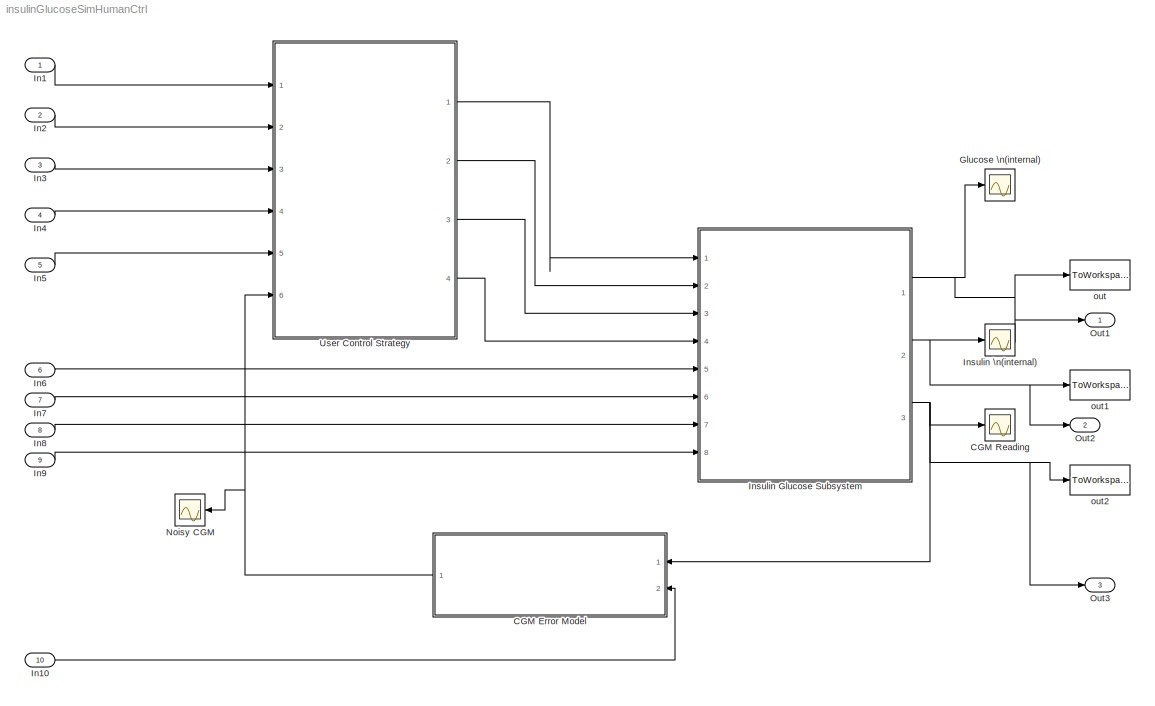
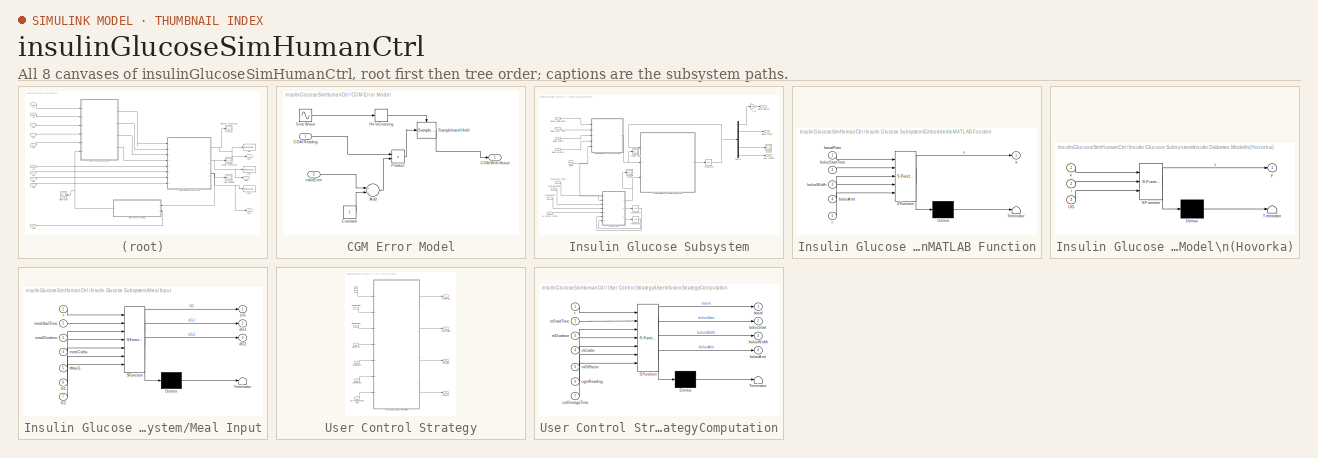
[diagram: thumbnail index - all 8 canvases of the model, root first then tree order]
MODEL insulinGlucoseSimHumanCtrl
KIND model
BLOCK [SubSystem] CGM Error Model
  FunctionWithSeparateData = off
  MaskHideContents = off
  MinAlgLoopOccurrences = off
  Opaque = off
  Ports = [2, 1]
  PropExecContextOutsideSubsystem = off
  RTWSystemCode = Auto
  RequestExecContextInheritance = off
  SID = 101
BLOCK [Sum] CGM Error Model/Add
  InputSameDT = off
  OutDataTypeMode = Inherit via internal rule
  OutDataTypeStr = Inherit: Inherit via internal rule
  Ports = [2, 1]
  SID = 108
  SaturateOnIntegerOverflow = off
BLOCK [Inport] CGM Error Model/CGM Reading
  IconDisplay = Port number
  SID = 102
BLOCK [Outport] CGM Error Model/CGM With Noise
  IconDisplay = Port number
  SID = 103
BLOCK [Constant] CGM Error Model/Constant
  SID = 106
BLOCK [HitCross] CGM Error Model/Hit \nCrossing
  HitCrossingDirection = rising
  Ports = [1, 1]
  SID = 143
BLOCK [Product] CGM Error Model/Product
  InputSameDT = off
  OutDataTypeMode = Inherit via internal rule
  OutDataTypeStr = Inherit: Inherit via internal rule
  Ports = [2, 1]
  SID = 109
  SaturateOnIntegerOverflow = off
BLOCK [Reference] CGM Error Model/Sample\nand Hold  REF=dspsigops/Sample\nand Hold
  FunctionWithSeparateData = off
  Ports = [1, 1, 0, 1]
  RTWMemSecDataConstants = Inherit from model
  RTWMemSecDataInternal = Inherit from model
  RTWMemSecDataParameters = Inherit from model
  RTWMemSecFuncExecute = Inherit from model
  RTWMemSecFuncInitTerm = Inherit from model
  SID = 139
  ShowPortLabels = FromPortIcon
  SourceBlock = dspsigops/Sample\nand Hold
  SourceType = Sample and Hold
  SystemSampleTime = -1
  initCond = 4.0
  latchinput = off
  trig = Rising edge
BLOCK [Sin] CGM Error Model/Sine Wave
  Amplitude = 1
  Bias = 0
  Frequency = 2 * 3.1415/20
  Offset = 0
  Phase = 0
  Ports = [0, 1]
  SID = 142
  SampleTime = 0
  Samples = 10
BLOCK [Inport] CGM Error Model/calibError
  IconDisplay = Port number
  Port = 2
  SID = 162
BLOCK [Scope] CGM Reading
  DataFormat = StructureWithTime
  Floating = off
  NumInputPorts = 1
  Ports = [1]
  SID = 79
  SampleTime = 0
  SaveName = ScopeData3
  YMax = 12
  YMin = 0
BLOCK [Scope] Glucose \n(internal)
  DataFormat = StructureWithTime
  Floating = off
  NumInputPorts = 1
  Ports = [1]
  SID = 80
  SampleTime = 0
  SaveName = ScopeData5
  YMax = 12
  YMin = 0
  ZoomMode = yonly
BLOCK [Inport] In1
  IconDisplay = Port number
  SID = 167
BLOCK [Inport] In10
  IconDisplay = Port number
  Port = 10
  SID = 176
BLOCK [Inport] In2
  IconDisplay = Port number
  Port = 2
  SID = 168
BLOCK [Inport] In3
  IconDisplay = Port number
  Port = 3
  SID = 169
BLOCK [Inport] In4
  IconDisplay = Port number
  Port = 4
  SID = 170
BLOCK [Inport] In5
  IconDisplay = Port number
  Port = 5
  SID = 171
BLOCK [Inport] In6
  IconDisplay = Port number
  Port = 6
  SID = 172
BLOCK [Inport] In7
  IconDisplay = Port number
  Port = 7
  SID = 173
BLOCK [Inport] In8
  IconDisplay = Port number
  Port = 8
  SID = 174
BLOCK [Inport] In9
  IconDisplay = Port number
  Port = 9
  SID = 175
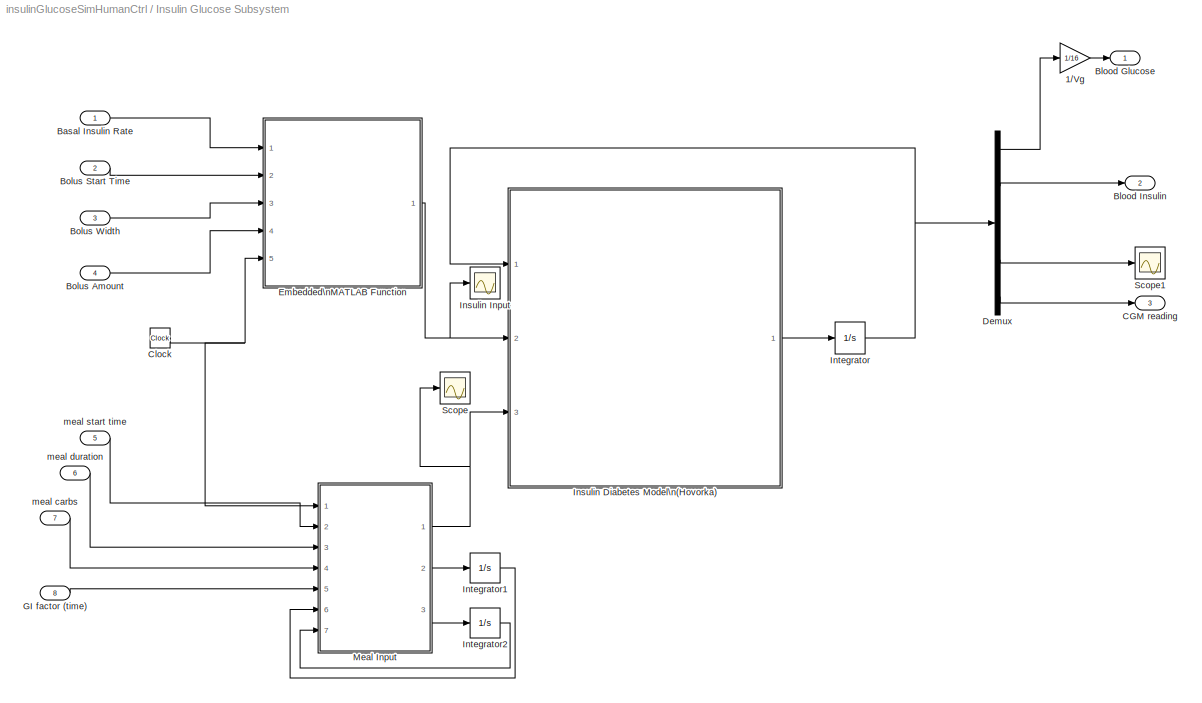
BLOCK [SubSystem] Insulin Glucose Subsystem
  FunctionWithSeparateData = off
  MaskHideContents = off
  MinAlgLoopOccurrences = off
  Opaque = off
  Ports = [8, 3]
  PropExecContextOutsideSubsystem = off
  RTWSystemCode = Auto
  RequestExecContextInheritance = off
  SID = 33
BLOCK [Gain] Insulin Glucose Subsystem/1//Vg
  Gain = 1/16
  OutDataTypeMode = Inherit via internal rule
  OutDataTypeStr = Inherit: Inherit via internal rule
  ParamDataTypeStr = Inherit: Inherit via internal rule
  ParameterDataTypeMode = Inherit via internal rule
  SID = 36
  SaturateOnIntegerOverflow = off
BLOCK [Inport] Insulin Glucose Subsystem/Basal Insulin Rate
  IconDisplay = Port number
  SID = 55
BLOCK [Outport] Insulin Glucose Subsystem/Blood Glucose
  IconDisplay = Port number
  SID = 65
BLOCK [Outport] Insulin Glucose Subsystem/Blood Insulin
  IconDisplay = Port number
  Port = 2
  SID = 66
BLOCK [Inport] Insulin Glucose Subsystem/Bolus Amount
  IconDisplay = Port number
  Port = 4
  SID = 58
BLOCK [Inport] Insulin Glucose Subsystem/Bolus Start Time
  IconDisplay = Port number
  Port = 2
  SID = 56
BLOCK [Inport] Insulin Glucose Subsystem/Bolus Width
  IconDisplay = Port number
  Port = 3
  SID = 57
BLOCK [Outport] Insulin Glucose Subsystem/CGM reading
  IconDisplay = Port number
  Port = 3
  SID = 67
BLOCK [Clock] Insulin Glucose Subsystem/Clock
  Decimation = 1000
  SID = 38
BLOCK [Demux] Insulin Glucose Subsystem/Demux
  DisplayOption = bar
  Outputs = 9
  Ports = [1, 9]
  SID = 39
BLOCK [SubSystem] Insulin Glucose Subsystem/Embedded\nMATLAB Function
  FunctionWithSeparateData = off
  MaskDescription = Embedded MATLAB block
  MaskDisplay = disp('insulinPump');
  MaskHideContents = off
  MaskIconFrame = on
  MaskIconOpaque = off
  MaskIconRotate = none
  MaskIconUnits = autoscale
  MaskPortRotate = default
  MaskSelfModifiable = on
  MaskType = Stateflow
  MinAlgLoopOccurrences = off
  Opaque = off
  PermitHierarchicalResolution = ExplicitOnly
  Ports = [5, 1]
  PropExecContextOutsideSubsystem = off
  RTWSystemCode = Auto
  RequestExecContextInheritance = off
  SID = 40
  TreatAsAtomicUnit = on
BLOCK [Demux] Insulin Glucose Subsystem/Embedded\nMATLAB Function/ Demux 
  Outputs = 1
  Ports = [1, 1]
  SID = 40
BLOCK [S-Function] Insulin Glucose Subsystem/Embedded\nMATLAB Function/ SFunction 
  EnableBusSupport = on
  FunctionName = sf_sfun
  PortCounts = [5 2]
  Ports = [5, 2]
  SID = 40
  Tag = Stateflow S-Function insulinGlucoseSimHumanCtrl 3
BLOCK [Terminator] Insulin Glucose Subsystem/Embedded\nMATLAB Function/ Terminator 
  SID = 40
BLOCK [Inport] Insulin Glucose Subsystem/Embedded\nMATLAB Function/basalRate
  IconDisplay = Port number
  SID = 40
BLOCK [Inport] Insulin Glucose Subsystem/Embedded\nMATLAB Function/bolusAmt
  IconDisplay = Port number
  Port = 4
  SID = 40
BLOCK [Inport] Insulin Glucose Subsystem/Embedded\nMATLAB Function/bolusStartTime
  IconDisplay = Port number
  Port = 2
  SID = 40
BLOCK [Inport] Insulin Glucose Subsystem/Embedded\nMATLAB Function/bolusWidth
  IconDisplay = Port number
  Port = 3
  SID = 40
BLOCK [Inport] Insulin Glucose Subsystem/Embedded\nMATLAB Function/t
  IconDisplay = Port number
  Port = 5
  SID = 40
BLOCK [Outport] Insulin Glucose Subsystem/Embedded\nMATLAB Function/y
  IconDisplay = Port number
  SID = 40
BLOCK [Inport] Insulin Glucose Subsystem/GI factor (time)
  IconDisplay = Port number
  Port = 8
  SID = 64
BLOCK [SubSystem] Insulin Glucose Subsystem/Insulin Diabetes Model\n(Hovorka)
  FunctionWithSeparateData = off
  MaskDescription = Embedded MATLAB block
  MaskDisplay = disp('insulinGlucoseSimulinkBlkFun');
  MaskHideContents = off
  MaskIconFrame = on
  MaskIconOpaque = off
  MaskIconRotate = none
  MaskIconUnits = autoscale
  MaskPortRotate = default
  MaskSelfModifiable = on
  MaskType = Stateflow
  MinAlgLoopOccurrences = off
  Opaque = off
  PermitHierarchicalResolution = ExplicitOnly
  Ports = [3, 1]
  PropExecContextOutsideSubsystem = off
  RTWSystemCode = Auto
  RequestExecContextInheritance = off
  SID = 43
  TreatAsAtomicUnit = on
BLOCK [Demux] Insulin Glucose Subsystem/Insulin Diabetes Model\n(Hovorka)/ Demux 
  Outputs = 1
  Ports = [1, 1]
  SID = 43
BLOCK [S-Function] Insulin Glucose Subsystem/Insulin Diabetes Model\n(Hovorka)/ SFunction 
  EnableBusSupport = on
  FunctionName = sf_sfun
  PortCounts = [3 2]
  Ports = [3, 2]
  SID = 43
  Tag = Stateflow S-Function insulinGlucoseSimHumanCtrl 2
BLOCK [Terminator] Insulin Glucose Subsystem/Insulin Diabetes Model\n(Hovorka)/ Terminator 
  SID = 43
BLOCK [Inport] Insulin Glucose Subsystem/Insulin Diabetes Model\n(Hovorka)/UG
  IconDisplay = Port number
  Port = 3
  SID = 43
BLOCK [Inport] Insulin Glucose Subsystem/Insulin Diabetes Model\n(Hovorka)/i
  IconDisplay = Port number
  Port = 2
  SID = 43
BLOCK [Inport] Insulin Glucose Subsystem/Insulin Diabetes Model\n(Hovorka)/x
  IconDisplay = Port number
  SID = 43
BLOCK [Outport] Insulin Glucose Subsystem/Insulin Diabetes Model\n(Hovorka)/y
  IconDisplay = Port number
  SID = 43
BLOCK [Scope] Insulin Glucose Subsystem/Insulin Input
  DataFormat = StructureWithTime
  Floating = off
  NumInputPorts = 1
  Ports = [1]
  SID = 44
  SampleTime = 0
  SaveName = ScopeData4
  YMax = 2.5
  YMin = 0
BLOCK [Integrator] Insulin Glucose Subsystem/Integrator
  InitialCondition = [64.0; 40.0; 0.03 ; 0.03; 0.045; 0.04; 4.2; 4; 4]
  Ports = [1, 1]
  SID = 45
BLOCK [Integrator] Insulin Glucose Subsystem/Integrator1
  Ports = [1, 1]
  SID = 62
BLOCK [Integrator] Insulin Glucose Subsystem/Integrator2
  Ports = [1, 1]
  SID = 63
BLOCK [SubSystem] Insulin Glucose Subsystem/Meal Input
  FunctionWithSeparateData = off
  MaskDescription = Embedded MATLAB block
  MaskDisplay = disp('mealInput');
  MaskHideContents = off
  MaskIconFrame = on
  MaskIconOpaque = off
  MaskIconRotate = none
  MaskIconUnits = autoscale
  MaskPortRotate = default
  MaskSelfModifiable = on
  MaskType = Stateflow
  MinAlgLoopOccurrences = off
  Opaque = off
  PermitHierarchicalResolution = ExplicitOnly
  Ports = [7, 3]
  PropExecContextOutsideSubsystem = off
  RTWSystemCode = Auto
  RequestExecContextInheritance = off
  SID = 49
  TreatAsAtomicUnit = on
BLOCK [Demux] Insulin Glucose Subsystem/Meal Input/ Demux 
  Outputs = 1
  Ports = [1, 1]
  SID = 49
BLOCK [S-Function] Insulin Glucose Subsystem/Meal Input/ SFunction 
  EnableBusSupport = on
  FunctionName = sf_sfun
  PortCounts = [7 4]
  Ports = [7, 4]
  SID = 49
  Tag = Stateflow S-Function insulinGlucoseSimHumanCtrl 1
BLOCK [Terminator] Insulin Glucose Subsystem/Meal Input/ Terminator 
  SID = 49
BLOCK [Inport] Insulin Glucose Subsystem/Meal Input/G1
  IconDisplay = Port number
  Port = 6
  SID = 49
BLOCK [Inport] Insulin Glucose Subsystem/Meal Input/G2
  IconDisplay = Port number
  Port = 7
  SID = 49
BLOCK [Outport] Insulin Glucose Subsystem/Meal Input/UG
  IconDisplay = Port number
  SID = 49
BLOCK [Outport] Insulin Glucose Subsystem/Meal Input/dG1
  IconDisplay = Port number
  Port = 2
  SID = 49
BLOCK [Outport] Insulin Glucose Subsystem/Meal Input/dG2
  IconDisplay = Port number
  Port = 3
  SID = 49
BLOCK [Inport] Insulin Glucose Subsystem/Meal Input/mealCarbs
  IconDisplay = Port number
  Port = 4
  SID = 49
BLOCK [Inport] Insulin Glucose Subsystem/Meal Input/mealDuration
  IconDisplay = Port number
  Port = 3
  SID = 49
BLOCK [Inport] Insulin Glucose Subsystem/Meal Input/mealStartTime
  IconDisplay = Port number
  Port = 2
  SID = 49
BLOCK [Inport] Insulin Glucose Subsystem/Meal Input/t
  IconDisplay = Port number
  SID = 49
BLOCK [Inport] Insulin Glucose Subsystem/Meal Input/tMaxG
  IconDisplay = Port number
  Port = 5
  SID = 49
BLOCK [Scope] Insulin Glucose Subsystem/Scope
  DataFormat = StructureWithTime
  Floating = off
  NumInputPorts = 1
  Ports = [1]
  SID = 82
  SampleTime = 0
BLOCK [Scope] Insulin Glucose Subsystem/Scope1
  DataFormat = StructureWithTime
  Floating = off
  NumInputPorts = 1
  Ports = [1]
  SID = 157
  SampleTime = 0
  SaveName = ScopeData7
BLOCK [Inport] Insulin Glucose Subsystem/meal carbs
  IconDisplay = Port number
  Port = 7
  SID = 61
BLOCK [Inport] Insulin Glucose Subsystem/meal duration
  IconDisplay = Port number
  Port = 6
  SID = 60
BLOCK [Inport] Insulin Glucose Subsystem/meal start time
  IconDisplay = Port number
  Port = 5
  SID = 59
BLOCK [Scope] Insulin \n(internal)
  DataFormat = StructureWithTime
  Floating = off
  NumInputPorts = 1
  Ports = [1]
  SID = 81
  SampleTime = 0
  SaveName = ScopeData6
  YMax = 0.1
  YMin = 0
BLOCK [Scope] Noisy CGM
  DataFormat = StructureWithTime
  Floating = off
  NumInputPorts = 1
  Ports = [1]
  SID = 118
  SampleTime = 0
  SaveName = ScopeData1
  YMax = 12
  YMin = 0
  ZoomMode = xonly
BLOCK [Outport] Out1
  IconDisplay = Port number
  SID = 163
BLOCK [Outport] Out2
  IconDisplay = Port number
  Port = 2
  SID = 164
BLOCK [Outport] Out3
  IconDisplay = Port number
  Port = 3
  SID = 165
BLOCK [SubSystem] User Control Strategy
  FunctionWithSeparateData = off
  MaskHideContents = off
  MinAlgLoopOccurrences = off
  Opaque = off
  Ports = [6, 4]
  PropExecContextOutsideSubsystem = off
  RTWSystemCode = Auto
  RequestExecContextInheritance = off
  SID = 83
BLOCK [Inport] User Control Strategy/CGM Reading
  IconDisplay = Port number
  Port = 6
  SID = 100
BLOCK [Clock] User Control Strategy/Clock
  Decimation = 10
  SID = 112
BLOCK [Inport] User Control Strategy/Correction Dosage Time
  IconDisplay = Port number
  Port = 5
  SID = 98
BLOCK [Inport] User Control Strategy/Meal  Start Time
  IconDisplay = Port number
  SID = 84
BLOCK [Inport] User Control Strategy/Meal Carbs
  IconDisplay = Port number
  Port = 3
  SID = 87
BLOCK [Inport] User Control Strategy/Meal Duration
  IconDisplay = Port number
  Port = 2
  SID = 86
BLOCK [Inport] User Control Strategy/Meal GI Factor
  IconDisplay = Port number
  Port = 4
  SID = 88
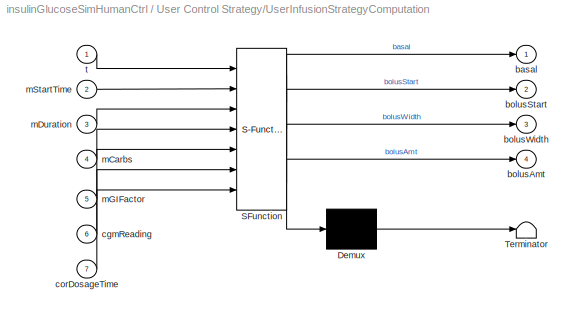
BLOCK [SubSystem] User Control Strategy/UserInfusionStrategyComputation
  FunctionWithSeparateData = off
  MaskDescription = Embedded MATLAB block
  MaskDisplay = disp('computeUserInfusionStrategy');
  MaskHideContents = off
  MaskIconFrame = on
  MaskIconOpaque = off
  MaskIconRotate = none
  MaskIconUnits = autoscale
  MaskPortRotate = default
  MaskSelfModifiable = on
  MaskType = Stateflow
  MinAlgLoopOccurrences = off
  Opaque = off
  PermitHierarchicalResolution = ExplicitOnly
  Ports = [7, 4]
  PropExecContextOutsideSubsystem = off
  RTWSystemCode = Auto
  RequestExecContextInheritance = off
  SID = 111
  TreatAsAtomicUnit = on
BLOCK [Demux] User Control Strategy/UserInfusionStrategyComputation/ Demux 
  Outputs = 1
  Ports = [1, 1]
  SID = 111
BLOCK [S-Function] User Control Strategy/UserInfusionStrategyComputation/ SFunction 
  EnableBusSupport = on
  FunctionName = sf_sfun
  PortCounts = [7 5]
  Ports = [7, 5]
  SID = 111
  Tag = Stateflow S-Function insulinGlucoseSimHumanCtrl 4
BLOCK [Terminator] User Control Strategy/UserInfusionStrategyComputation/ Terminator 
  SID = 111
BLOCK [Outport] User Control Strategy/UserInfusionStrategyComputation/basal
  IconDisplay = Port number
  SID = 111
BLOCK [Outport] User Control Strategy/UserInfusionStrategyComputation/bolusAmt
  IconDisplay = Port number
  Port = 4
  SID = 111
BLOCK [Outport] User Control Strategy/UserInfusionStrategyComputation/bolusStart
  IconDisplay = Port number
  Port = 2
  SID = 111
BLOCK [Outport] User Control Strategy/UserInfusionStrategyComputation/bolusWidth
  IconDisplay = Port number
  Port = 3
  SID = 111
BLOCK [Inport] User Control Strategy/UserInfusionStrategyComputation/cgmReading
  IconDisplay = Port number
  Port = 6
  SID = 111
BLOCK [Inport] User Control Strategy/UserInfusionStrategyComputation/corDosageTime
  IconDisplay = Port number
  Port = 7
  SID = 111
BLOCK [Inport] User Control Strategy/UserInfusionStrategyComputation/mCarbs
  IconDisplay = Port number
  Port = 4
  SID = 111
BLOCK [Inport] User Control Strategy/UserInfusionStrategyComputation/mDuration
  IconDisplay = Port number
  Port = 3
  SID = 111
BLOCK [Inport] User Control Strategy/UserInfusionStrategyComputation/mGIFactor
  IconDisplay = Port number
  Port = 5
  SID = 111
BLOCK [Inport] User Control Strategy/UserInfusionStrategyComputation/mStartTime
  IconDisplay = Port number
  Port = 2
  SID = 111
BLOCK [Inport] User Control Strategy/UserInfusionStrategyComputation/t
  IconDisplay = Port number
  SID = 111
BLOCK [Outport] User Control Strategy/basal Insulin
  IconDisplay = Port number
  SID = 85
BLOCK [Outport] User Control Strategy/bolus amt.
  IconDisplay = Port number
  Port = 4
  SID = 91
BLOCK [Outport] User Control Strategy/bolus start time
  IconDisplay = Port number
  Port = 2
  SID = 89
BLOCK [Outport] User Control Strategy/bolus width
  IconDisplay = Port number
  Port = 3
  SID = 90
BLOCK [ToWorkspace] out
  MaxDataPoints = inf
  Ports = [1]
  SID = 154
  SampleTime = -1
  SaveFormat = Array
  VariableName = Gt
BLOCK [ToWorkspace] out1
  MaxDataPoints = inf
  Ports = [1]
  SID = 155
  SampleTime = -1
  SaveFormat = Array
  VariableName = It
BLOCK [ToWorkspace] out2
  MaxDataPoints = inf
  Ports = [1]
  SID = 156
  SampleTime = -1
  SaveFormat = Array
  VariableName = Ct
LINE CGM Error Model/Add:1 -> CGM Error Model/Product:2
LINE CGM Error Model/CGM Reading:1 -> CGM Error Model/Product:1
LINE CGM Error Model/Constant:1 -> CGM Error Model/Add:2
LINE CGM Error Model/Hit \nCrossing:1 -> CGM Error Model/Sample\nand Hold:trigger
LINE CGM Error Model/Product:1 -> CGM Error Model/Sample\nand Hold:1
LINE CGM Error Model/Sample\nand Hold:1 -> CGM Error Model/CGM With Noise:1
LINE CGM Error Model/Sine Wave:1 -> CGM Error Model/Hit \nCrossing:1
LINE CGM Error Model/calibError:1 -> CGM Error Model/Add:1
NET CGM Error Model:1 -> Noisy CGM:1, User Control Strategy:6
LINE In10:1 -> CGM Error Model:2
LINE In1:1 -> User Control Strategy:1
LINE In2:1 -> User Control Strategy:2
LINE In3:1 -> User Control Strategy:3
LINE In4:1 -> User Control Strategy:4
LINE In5:1 -> User Control Strategy:5
LINE In6:1 -> Insulin Glucose Subsystem:5
LINE In7:1 -> Insulin Glucose Subsystem:6
LINE In8:1 -> Insulin Glucose Subsystem:7
LINE In9:1 -> Insulin Glucose Subsystem:8
LINE Insulin Glucose Subsystem/1//Vg:1 -> Insulin Glucose Subsystem/Blood Glucose:1
LINE Insulin Glucose Subsystem/Basal Insulin Rate:1 -> Insulin Glucose Subsystem/Embedded\nMATLAB Function:1
LINE Insulin Glucose Subsystem/Bolus Amount:1 -> Insulin Glucose Subsystem/Embedded\nMATLAB Function:4
LINE Insulin Glucose Subsystem/Bolus Start Time:1 -> Insulin Glucose Subsystem/Embedded\nMATLAB Function:2
LINE Insulin Glucose Subsystem/Bolus Width:1 -> Insulin Glucose Subsystem/Embedded\nMATLAB Function:3
NET Insulin Glucose Subsystem/Clock:1 -> Insulin Glucose Subsystem/Embedded\nMATLAB Function:5, Insulin Glucose Subsystem/Meal Input:1
LINE Insulin Glucose Subsystem/Demux:1 -> Insulin Glucose Subsystem/1//Vg:1
LINE Insulin Glucose Subsystem/Demux:3 -> Insulin Glucose Subsystem/Blood Insulin:1
LINE Insulin Glucose Subsystem/Demux:7 -> Insulin Glucose Subsystem/Scope1:1
LINE Insulin Glucose Subsystem/Demux:9 -> Insulin Glucose Subsystem/CGM reading:1
LINE Insulin Glucose Subsystem/Embedded\nMATLAB Function/ Demux :1 -> Insulin Glucose Subsystem/Embedded\nMATLAB Function/ Terminator :1
LINE Insulin Glucose Subsystem/Embedded\nMATLAB Function/ SFunction :1 -> Insulin Glucose Subsystem/Embedded\nMATLAB Function/ Demux :1
LINE Insulin Glucose Subsystem/Embedded\nMATLAB Function/ SFunction :2 -> Insulin Glucose Subsystem/Embedded\nMATLAB Function/y:1
LINE Insulin Glucose Subsystem/Embedded\nMATLAB Function/basalRate:1 -> Insulin Glucose Subsystem/Embedded\nMATLAB Function/ SFunction :1
LINE Insulin Glucose Subsystem/Embedded\nMATLAB Function/bolusAmt:1 -> Insulin Glucose Subsystem/Embedded\nMATLAB Function/ SFunction :4
LINE Insulin Glucose Subsystem/Embedded\nMATLAB Function/bolusStartTime:1 -> Insulin Glucose Subsystem/Embedded\nMATLAB Function/ SFunction :2
LINE Insulin Glucose Subsystem/Embedded\nMATLAB Function/bolusWidth:1 -> Insulin Glucose Subsystem/Embedded\nMATLAB Function/ SFunction :3
LINE Insulin Glucose Subsystem/Embedded\nMATLAB Function/t:1 -> Insulin Glucose Subsystem/Embedded\nMATLAB Function/ SFunction :5
NET Insulin Glucose Subsystem/Embedded\nMATLAB Function:1 -> Insulin Glucose Subsystem/Insulin Diabetes Model\n(Hovorka):2, Insulin Glucose Subsystem/Insulin Input:1
LINE Insulin Glucose Subsystem/GI factor (time):1 -> Insulin Glucose Subsystem/Meal Input:5
LINE Insulin Glucose Subsystem/Insulin Diabetes Model\n(Hovorka)/ Demux :1 -> Insulin Glucose Subsystem/Insulin Diabetes Model\n(Hovorka)/ Terminator :1
LINE Insulin Glucose Subsystem/Insulin Diabetes Model\n(Hovorka)/ SFunction :1 -> Insulin Glucose Subsystem/Insulin Diabetes Model\n(Hovorka)/ Demux :1
LINE Insulin Glucose Subsystem/Insulin Diabetes Model\n(Hovorka)/ SFunction :2 -> Insulin Glucose Subsystem/Insulin Diabetes Model\n(Hovorka)/y:1
LINE Insulin Glucose Subsystem/Insulin Diabetes Model\n(Hovorka)/UG:1 -> Insulin Glucose Subsystem/Insulin Diabetes Model\n(Hovorka)/ SFunction :3
LINE Insulin Glucose Subsystem/Insulin Diabetes Model\n(Hovorka)/i:1 -> Insulin Glucose Subsystem/Insulin Diabetes Model\n(Hovorka)/ SFunction :2
LINE Insulin Glucose Subsystem/Insulin Diabetes Model\n(Hovorka)/x:1 -> Insulin Glucose Subsystem/Insulin Diabetes Model\n(Hovorka)/ SFunction :1
LINE Insulin Glucose Subsystem/Insulin Diabetes Model\n(Hovorka):1 -> Insulin Glucose Subsystem/Integrator:1
LINE Insulin Glucose Subsystem/Integrator1:1 -> Insulin Glucose Subsystem/Meal Input:6
LINE Insulin Glucose Subsystem/Integrator2:1 -> Insulin Glucose Subsystem/Meal Input:7
NET Insulin Glucose Subsystem/Integrator:1 -> Insulin Glucose Subsystem/Demux:1, Insulin Glucose Subsystem/Insulin Diabetes Model\n(Hovorka):1
LINE Insulin Glucose Subsystem/Meal Input/ Demux :1 -> Insulin Glucose Subsystem/Meal Input/ Terminator :1
LINE Insulin Glucose Subsystem/Meal Input/ SFunction :1 -> Insulin Glucose Subsystem/Meal Input/ Demux :1
LINE Insulin Glucose Subsystem/Meal Input/ SFunction :2 -> Insulin Glucose Subsystem/Meal Input/UG:1
LINE Insulin Glucose Subsystem/Meal Input/ SFunction :3 -> Insulin Glucose Subsystem/Meal Input/dG1:1
LINE Insulin Glucose Subsystem/Meal Input/ SFunction :4 -> Insulin Glucose Subsystem/Meal Input/dG2:1
LINE Insulin Glucose Subsystem/Meal Input/G1:1 -> Insulin Glucose Subsystem/Meal Input/ SFunction :6
LINE Insulin Glucose Subsystem/Meal Input/G2:1 -> Insulin Glucose Subsystem/Meal Input/ SFunction :7
LINE Insulin Glucose Subsystem/Meal Input/mealCarbs:1 -> Insulin Glucose Subsystem/Meal Input/ SFunction :4
LINE Insulin Glucose Subsystem/Meal Input/mealDuration:1 -> Insulin Glucose Subsystem/Meal Input/ SFunction :3
LINE Insulin Glucose Subsystem/Meal Input/mealStartTime:1 -> Insulin Glucose Subsystem/Meal Input/ SFunction :2
LINE Insulin Glucose Subsystem/Meal Input/t:1 -> Insulin Glucose Subsystem/Meal Input/ SFunction :1
LINE Insulin Glucose Subsystem/Meal Input/tMaxG:1 -> Insulin Glucose Subsystem/Meal Input/ SFunction :5
NET Insulin Glucose Subsystem/Meal Input:1 -> Insulin Glucose Subsystem/Insulin Diabetes Model\n(Hovorka):3, Insulin Glucose Subsystem/Scope:1
LINE Insulin Glucose Subsystem/Meal Input:2 -> Insulin Glucose Subsystem/Integrator1:1
LINE Insulin Glucose Subsystem/Meal Input:3 -> Insulin Glucose Subsystem/Integrator2:1
LINE Insulin Glucose Subsystem/meal carbs:1 -> Insulin Glucose Subsystem/Meal Input:4
LINE Insulin Glucose Subsystem/meal duration:1 -> Insulin Glucose Subsystem/Meal Input:3
LINE Insulin Glucose Subsystem/meal start time:1 -> Insulin Glucose Subsystem/Meal Input:2
NET Insulin Glucose Subsystem:1 -> Glucose \n(internal):1, Out1:1, out:1
NET Insulin Glucose Subsystem:2 -> Insulin \n(internal):1, Out2:1, out1:1
NET Insulin Glucose Subsystem:3 -> CGM Error Model:1, CGM Reading:1, Out3:1, out2:1
LINE User Control Strategy/CGM Reading:1 -> User Control Strategy/UserInfusionStrategyComputation:6
LINE User Control Strategy/Clock:1 -> User Control Strategy/UserInfusionStrategyComputation:1
LINE User Control Strategy/Correction Dosage Time:1 -> User Control Strategy/UserInfusionStrategyComputation:7
LINE User Control Strategy/Meal  Start Time:1 -> User Control Strategy/UserInfusionStrategyComputation:2
LINE User Control Strategy/Meal Carbs:1 -> User Control Strategy/UserInfusionStrategyComputation:4
LINE User Control Strategy/Meal Duration:1 -> User Control Strategy/UserInfusionStrategyComputation:3
LINE User Control Strategy/Meal GI Factor:1 -> User Control Strategy/UserInfusionStrategyComputation:5
LINE User Control Strategy/UserInfusionStrategyComputation/ Demux :1 -> User Control Strategy/UserInfusionStrategyComputation/ Terminator :1
LINE User Control Strategy/UserInfusionStrategyComputation/ SFunction :1 -> User Control Strategy/UserInfusionStrategyComputation/ Demux :1
LINE User Control Strategy/UserInfusionStrategyComputation/ SFunction :2 -> User Control Strategy/UserInfusionStrategyComputation/basal:1
LINE User Control Strategy/UserInfusionStrategyComputation/ SFunction :3 -> User Control Strategy/UserInfusionStrategyComputation/bolusStart:1
LINE User Control Strategy/UserInfusionStrategyComputation/ SFunction :4 -> User Control Strategy/UserInfusionStrategyComputation/bolusWidth:1
LINE User Control Strategy/UserInfusionStrategyComputation/ SFunction :5 -> User Control Strategy/UserInfusionStrategyComputation/bolusAmt:1
LINE User Control Strategy/UserInfusionStrategyComputation/cgmReading:1 -> User Control Strategy/UserInfusionStrategyComputation/ SFunction :6
LINE User Control Strategy/UserInfusionStrategyComputation/corDosageTime:1 -> User Control Strategy/UserInfusionStrategyComputation/ SFunction :7
LINE User Control Strategy/UserInfusionStrategyComputation/mCarbs:1 -> User Control Strategy/UserInfusionStrategyComputation/ SFunction :4
LINE User Control Strategy/UserInfusionStrategyComputation/mDuration:1 -> User Control Strategy/UserInfusionStrategyComputation/ SFunction :3
LINE User Control Strategy/UserInfusionStrategyComputation/mGIFactor:1 -> User Control Strategy/UserInfusionStrategyComputation/ SFunction :5
LINE User Control Strategy/UserInfusionStrategyComputation/mStartTime:1 -> User Control Strategy/UserInfusionStrategyComputation/ SFunction :2
LINE User Control Strategy/UserInfusionStrategyComputation/t:1 -> User Control Strategy/UserInfusionStrategyComputation/ SFunction :1
LINE User Control Strategy/UserInfusionStrategyComputation:1 -> User Control Strategy/basal Insulin:1
LINE User Control Strategy/UserInfusionStrategyComputation:2 -> User Control Strategy/bolus start time:1
LINE User Control Strategy/UserInfusionStrategyComputation:3 -> User Control Strategy/bolus width:1
LINE User Control Strategy/UserInfusionStrategyComputation:4 -> User Control Strategy/bolus amt.:1
LINE User Control Strategy:1 -> Insulin Glucose Subsystem:1
LINE User Control Strategy:2 -> Insulin Glucose Subsystem:2
LINE User Control Strategy:3 -> Insulin Glucose Subsystem:3
LINE User Control Strategy:4 -> Insulin Glucose Subsystem:4
note: NET lines group one-source signal fan-out (src -> all destinations, sorted); 1:1 wires keep LINE
CHART Insulin Glucose Subsystem/Meal Input states=1 transitions=1
  STATE_LABEL 'eML_blk_kernel()'
CHART Insulin Glucose Subsystem/Insulin Diabetes Model\n(Hovorka) states=1 transitions=1
  STATE_LABEL 'eML_blk_kernel()'
CHART Insulin Glucose Subsystem/Embedded\nMATLAB Function states=1 transitions=1
  STATE_LABEL 'eML_blk_kernel()'
CHART User Control Strategy/UserInfusionStrategyComputation states=1 transitions=1
  STATE_LABEL 'eML_blk_kernel()'
